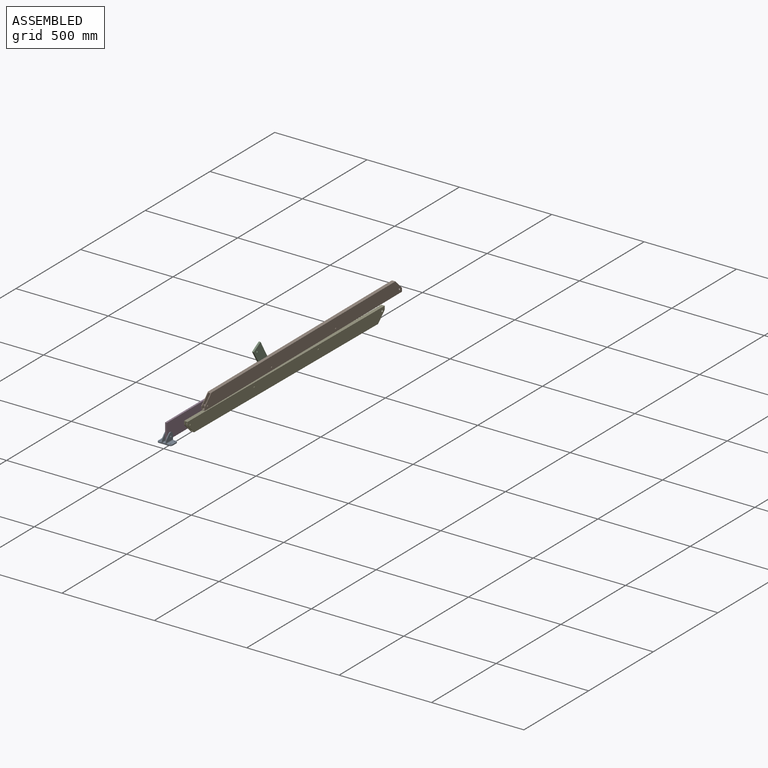
[diagram: assembled view]
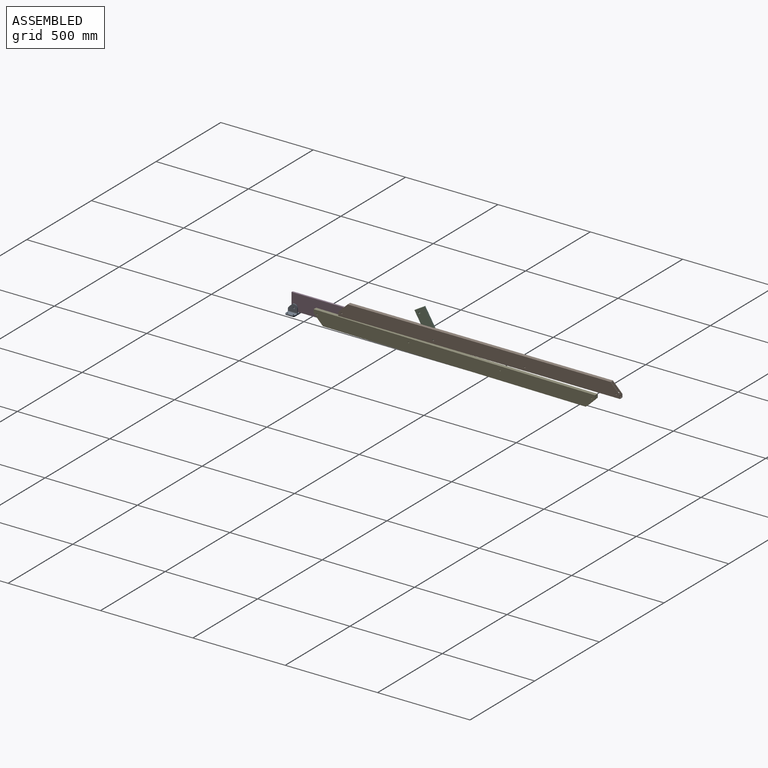
[diagram: assembled view, second angle]
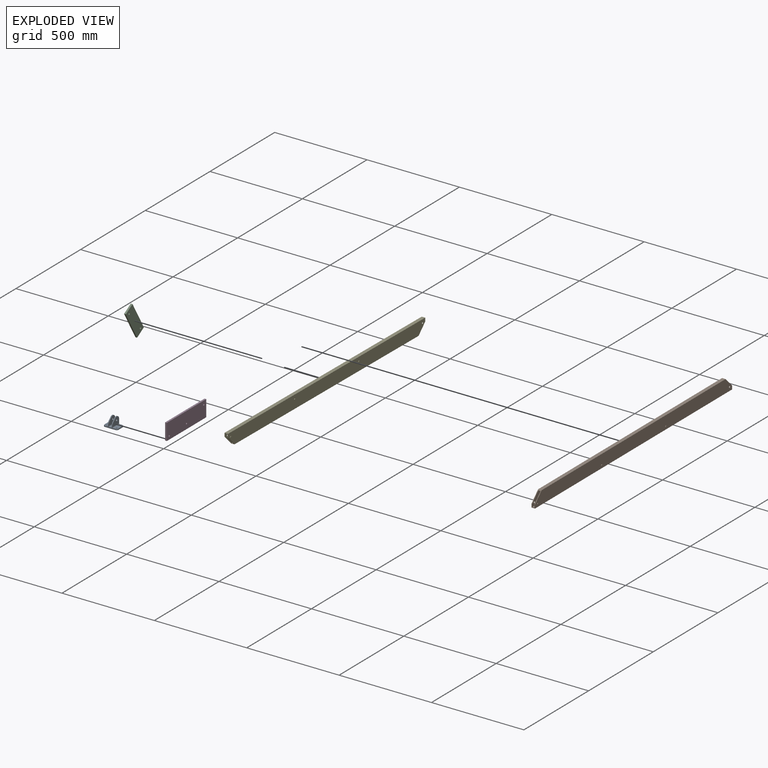
[diagram: exploded view]
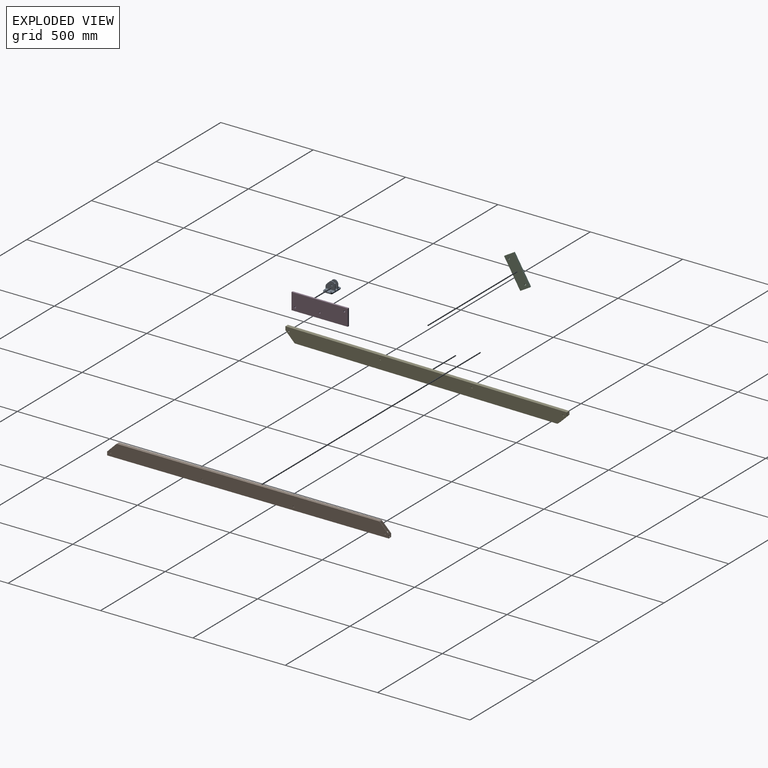
[diagram: exploded view, second angle]
ASSEMBLY  parts=5 mates=4
PART A: 34 faces, bbox 76.2x50.8x50.8 mm
  f0: plane 50.8x21.24mm, normal (0,0,1), area 968.4mm2, adj f2,f4,f5,f14,f15,f25,f27,f31
  f1: plane 50.8x8.29mm, normal (0,0,1), area 421mm2, adj f2,f4,f30,f33
  f2: plane 57.15x31.75mm, normal (0,1,0), area 619mm2, adj f0,f1,f6,f7,f8,f9,f10,f11
  f3: plane 31.75x6.35mm, normal (-1,0,0), area 201.6mm2, adj f6,f7,f12,f13
  f4: plane 57.15x17.51mm, normal (0,-1,0), area 483mm2, adj f0,f1,f6,f7,f8,f9,f10,f11
  f5: plane 31.75x6.35mm, normal (1,0,0), area 201.6mm2, adj f0,f7,f14,f15
  f6: plane 50.8x21.24mm, normal (0,0,1), area 968.4mm2, adj f2,f3,f4,f12,f13,f24,f26,f32
  f7: plane 76.2x50.8mm, normal (0,0,-1), area 3649.7mm2, adj f2,f3,f4,f5,f12,f13,f14,f15
  f8: plane 50.8x40.46mm, normal (1,0,0), area 1563.2mm2, adj f2,f4,f17,f18,f19,f21,f29,f33
  f9: plane 50.8x40.46mm, normal (-1,0,0), area 1563.2mm2, adj f2,f4,f17,f18,f19,f21,f29,f32
  f10: plane 50.8x40.46mm, normal (1,0,0), area 1563.2mm2, adj f2,f4,f16,f20,f22,f23,f28,f31
  f11: plane 50.8x40.46mm, normal (-1,0,0), area 1563.2mm2, adj f2,f4,f16,f20,f22,f23,f28,f30
  f12: cylinder r=9.53mm len=9.53mm, axis (0,0,1), area 95mm2, adj f2,f3,f6,f7
  f13: cylinder r=9.53mm len=9.53mm, axis (0,0,-1), area 95mm2, adj f3,f4,f6,f7
  f14: cylinder r=9.53mm len=9.53mm, axis (0,0,1), area 95mm2, adj f0,f4,f5,f7
  f15: cylinder r=9.53mm len=9.53mm, axis (0,0,-1), area 95mm2, adj f0,f2,f5,f7
  f16: plane 14.24x14.24mm, normal (0,-0.71,0.71), area 96.2mm2, adj f10,f11,f20,f23
  f17: plane 14.24x14.24mm, normal (0,-0.71,0.71), area 96.2mm2, adj f8,f9,f19,f21
  f18: cylinder r=19.05mm len=19.03mm, axis (1,0,0), area 139.2mm2, adj f2,f8,f9,f19
  f19: cylinder r=19.05mm len=12.7mm, axis (1,0,0), area 67.8mm2, adj f8,f9,f17,f18
  f20: cylinder r=19.05mm len=13.47mm, axis (1,0,0), area 71.4mm2, adj f4,f10,f11,f16
  f21: cylinder r=19.05mm len=13.47mm, axis (1,0,0), area 71.4mm2, adj f4,f8,f9,f17
  f22: cylinder r=19.05mm len=19.03mm, axis (1,0,0), area 139.2mm2, adj f2,f10,f11,f23
  f23: cylinder r=19.05mm len=12.7mm, axis (1,0,0), area 67.8mm2, adj f10,f11,f16,f22
  f24: cylinder r=3.38mm len=6.76mm, axis (0,0,1), area 134.8mm2, adj f6,f7
  f25: cylinder r=3.38mm len=6.76mm, axis (0,0,1), area 134.8mm2, adj f0,f7
  f26: cylinder r=3.38mm len=6.76mm, axis (0,0,1), area 134.8mm2, adj f6,f7
  f27: cylinder r=3.38mm len=6.76mm, axis (0,0,1), area 134.8mm2, adj f0,f7
  f28: cylinder r=4.95mm len=9.91mm, axis (-1,0,0), area 148.6mm2, adj f10,f11
  f29: cylinder r=4.95mm len=9.91mm, axis (-1,0,0), area 148.6mm2, adj f8,f9
  f30: cylinder r=3.97mm len=50.8mm, axis (0,-1,0), area 316.8mm2, adj f1,f2,f4,f11
  f31: cylinder r=3.97mm len=50.8mm, axis (0,1,0), area 316.8mm2, adj f0,f2,f4,f10
  f32: cylinder r=3.97mm len=50.8mm, axis (0,-1,0), area 316.8mm2, adj f2,f4,f6,f9
  f33: cylinder r=3.97mm len=50.8mm, axis (0,1,0), area 316.8mm2, adj f1,f2,f4,f8
PART B: 20 faces, bbox 19.1x1524x69.9 mm
  f0: plane 1524x69.85mm, normal (1,0,0), area 103579.5mm2, adj f1,f3,f4,f5,f10,f11,f12,f14
  f1: plane 1524x19.05mm, normal (0,0,1), area 29032.2mm2, adj f0,f2,f4,f5
  f2: plane 1524x69.85mm, normal (-1,0,0), area 103579.5mm2, adj f1,f3,f4,f5,f10,f11,f13,f15
  f3: plane 1422.4x19.05mm, normal (0,0,-1), area 27096.7mm2, adj f0,f2,f10,f11
  f4: plane 19.05x19.05mm, normal (0,1,0), area 161.3mm2, adj f0,f1,f2,f6,f7,f9,f10
  f5: plane 19.05x19.05mm, normal (0,-1,0), area 161.3mm2, adj f0,f1,f2,f6,f7,f9,f11
  f6: plane 1524x63.5mm, normal (1,0,0), area 94214.6mm2, adj f4,f5,f7,f8,f10,f11,f13,f15
  f7: plane 1524x12.7mm, normal (0,0,-1), area 19354.8mm2, adj f4,f5,f6,f9
  f8: plane 1428.75x12.7mm, normal (0,0,1), area 18145.1mm2, adj f6,f9,f10,f11
  f9: plane 1524x63.5mm, normal (-1,0,0), area 94214.6mm2, adj f4,f5,f7,f8,f10,f11,f12,f14
  f10: plane 50.8x50.8mm, normal (0,0.71,-0.71), area 513.2mm2, adj f0,f2,f3,f4,f6,f8,f9
  f11: plane 50.8x50.8mm, normal (0,-0.71,-0.71), area 513.2mm2, adj f0,f2,f3,f5,f6,f8,f9
  f12: cylinder r=4.81mm len=9.63mm, axis (1,0,0), area 96mm2, adj f0,f9
  f13: cylinder r=4.81mm len=9.63mm, axis (1,0,0), area 96mm2, adj f2,f6
  f14: cylinder r=4.81mm len=9.63mm, axis (1,0,0), area 96mm2, adj f0,f9
  f15: cylinder r=4.81mm len=9.63mm, axis (1,0,0), area 96mm2, adj f2,f6
  f16: cylinder r=4.81mm len=9.63mm, axis (1,0,0), area 96mm2, adj f0,f9
  f17: cylinder r=4.81mm len=9.63mm, axis (1,0,0), area 96mm2, adj f2,f6
  f18: cylinder r=4.81mm len=9.63mm, axis (1,0,0), area 96mm2, adj f0,f9
  f19: cylinder r=4.81mm len=9.63mm, axis (1,0,0), area 96mm2, adj f2,f6
PART C: 8 faces, bbox 9.5x171.5x60.3 mm
  f0: plane 60.33x9.53mm, normal (0,-1,0), area 574.6mm2, adj f1,f3,f4,f5
  f1: plane 171.45x9.53mm, normal (0,0,-1), area 1633.1mm2, adj f0,f2,f4,f5
  f2: plane 60.33x9.53mm, normal (0,1,0), area 574.6mm2, adj f1,f3,f4,f5
  f3: plane 171.45x9.53mm, normal (0,0,1), area 1633.1mm2, adj f0,f2,f4,f5
  f4: plane 171.45x60.33mm, normal (1,0,0), area 10200.2mm2, adj f0,f1,f2,f3,f6,f7
  f5: plane 171.45x60.33mm, normal (-1,0,0), area 10200.2mm2, adj f0,f1,f2,f3,f6,f7
  f6: cylinder r=4.76mm len=9.53mm, axis (1,0,0), area 285mm2, adj f4,f5
  f7: cylinder r=4.76mm len=9.53mm, axis (1,0,0), area 285mm2, adj f4,f5
PART D: 9 faces, bbox 9.5x304.8x88.9 mm
  f0: plane 88.9x9.53mm, normal (0,-1,0), area 846.8mm2, adj f1,f3,f4,f5
  f1: plane 304.8x9.53mm, normal (0,0,-1), area 2903.2mm2, adj f0,f2,f4,f5
  f2: plane 88.9x9.53mm, normal (0,1,0), area 846.8mm2, adj f1,f3,f4,f5
  f3: plane 304.8x9.53mm, normal (0,0,1), area 2903.2mm2, adj f0,f2,f4,f5
  f4: plane 304.8x88.9mm, normal (1,0,0), area 26883mm2, adj f0,f1,f2,f3,f6,f7,f8
  f5: plane 304.8x88.9mm, normal (-1,0,0), area 26883mm2, adj f0,f1,f2,f3,f6,f7,f8
  f6: cylinder r=4.76mm len=9.53mm, axis (1,0,0), area 285mm2, adj f4,f5
  f7: cylinder r=4.76mm len=9.53mm, axis (1,0,0), area 285mm2, adj f4,f5
  f8: cylinder r=4.76mm len=9.53mm, axis (1,0,0), area 285mm2, adj f4,f5
PART E: same geometry as B
PLACE A at identity fixed
PLACE B rot(axis=(0,1,0),180deg) t=(52.56,230.13,98.41)mm
PLACE C rot(axis=(0,-0.49,-0.87),180deg) t=(46.21,718.75,45.39)mm
PLACE D rot(axis=(0,1,0),180deg) t=(43.04,-36.56,101.6)mm
PLACE E rot(axis=(-1,0,0),0.5deg) t=(52.56,96.65,25.57)mm
MATE revolute D.f7 <-> E.f18  axis (1,0,0) through (43.04,115.84,41.28)mm
MATE revolute C.f6 <-> B.f16  axis (1,0,0) through (46.21,744.49,82.86)mm
MATE revolute D.f8 <-> B.f18  axis (1,0,0) through (43.04,249.19,82.55)mm
MATE fastened A.f19 <-> D.f6  axis (1,0,0) through (50.99,-17.51,31.75)mm
